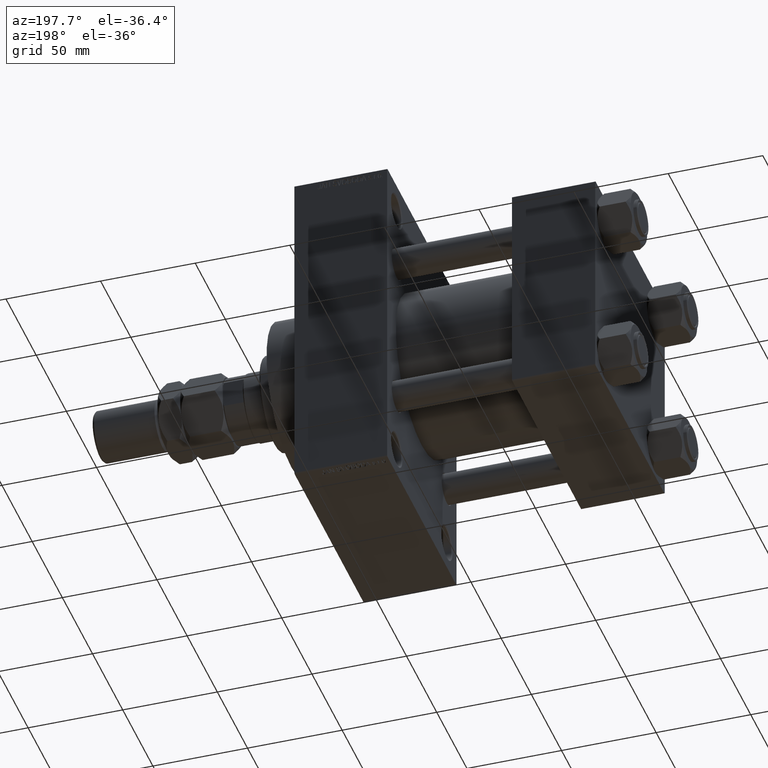
[diagram: clean part render]
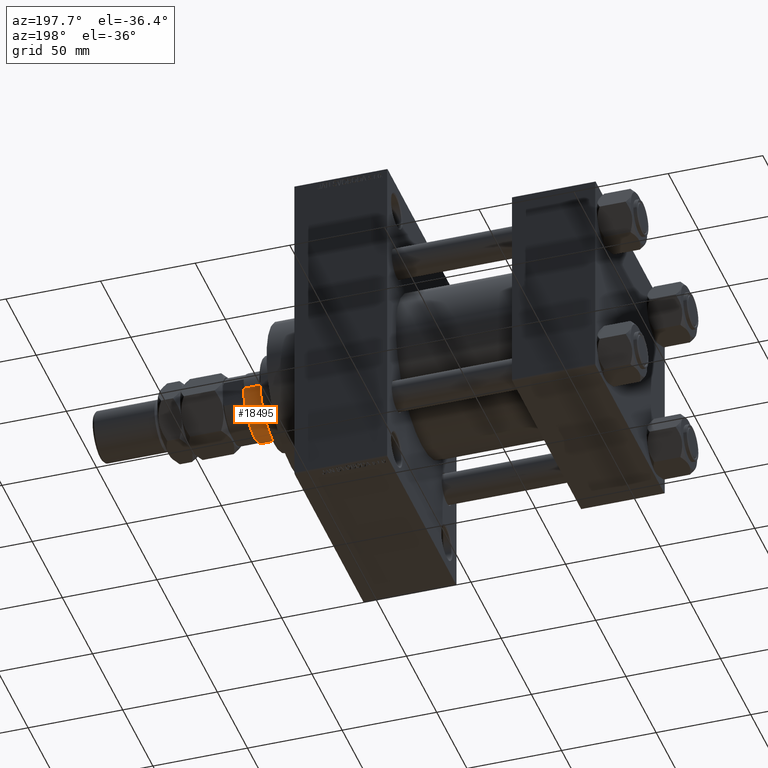
[diagram: same view with one face highlighted and labeled with its STEP entity id]
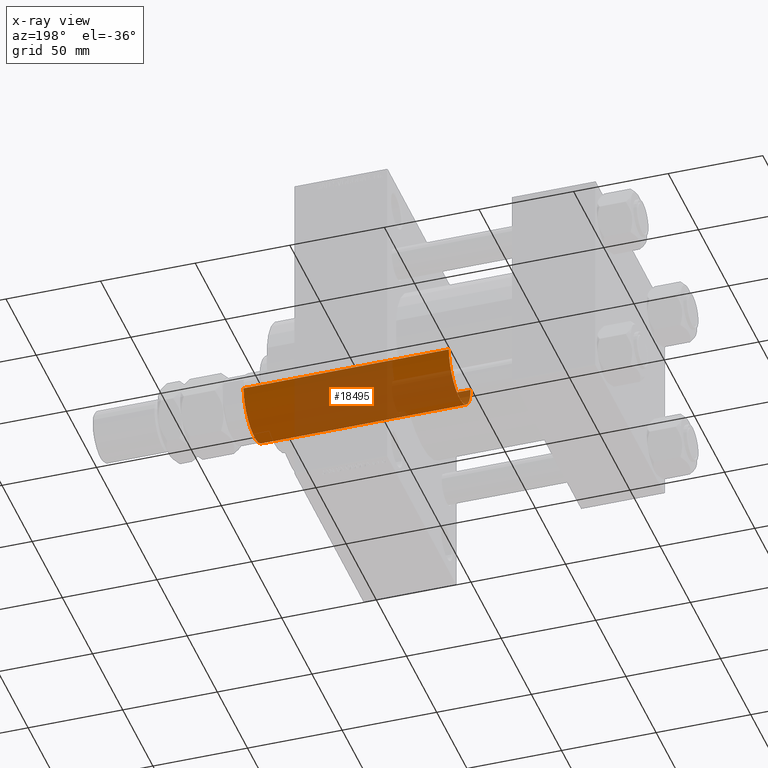
[diagram: x-ray of the same camera — body ghosted, the highlighted face saturated]
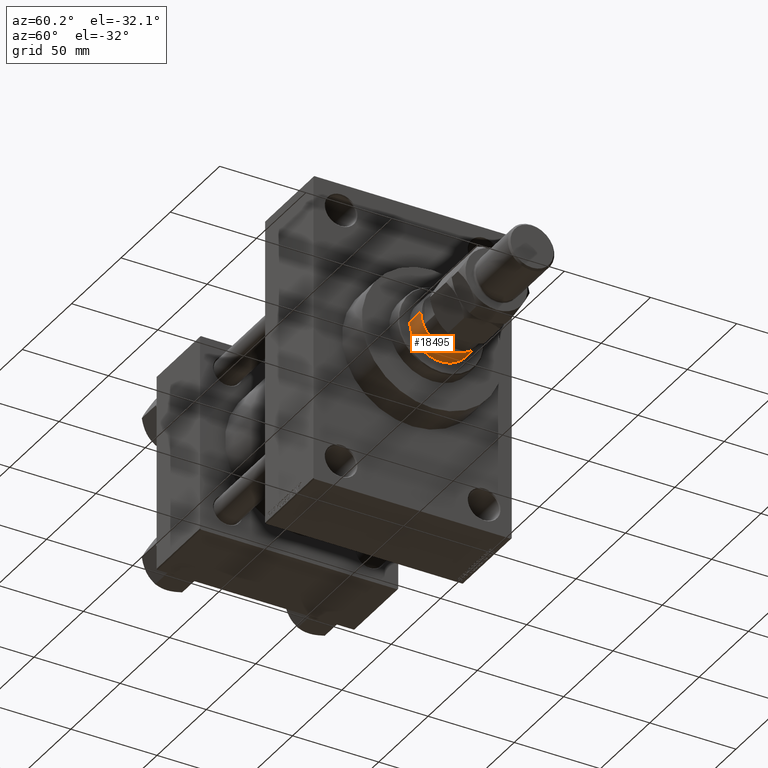
[diagram: same view with one face highlighted and labeled with its STEP entity id]
A machine part, auxiliary view. The second image highlights one B-rep face of the part: STEP entity #18495.
The next image is the same camera in x-ray: the body ghosted, the highlighted face saturated — about 66% of this face is hidden behind the body in this view.
A second angle (auxiliary view) of the same face is appended — the face is thin or edge-on in the first view.
In plain terms, the highlighted cylindrical surface (edge-blend (fillet) strip) has radius 18 mm, axis along (-1, 0, 0).
Its self-contained STEP definition (entity closure, byte-faithful):
#1953 = DIRECTION ( 'NONE',  ( -0.000000000000000000, -0.000000000000000000, -1.000000000000000000 ) ) ;
#2214 = VERTEX_POINT ( 'NONE', #26973 ) ;
#2231 = CARTESIAN_POINT ( 'NONE',  ( -18.00000000000000000, 0.000000000000000000, 155.0000000000000000 ) ) ;
#3072 = DIRECTION ( 'NONE',  ( 1.000000000000000000, 0.000000000000000000, 0.000000000000000000 ) ) ;
#4295 = CARTESIAN_POINT ( 'NONE',  ( -18.00000000000000000, 0.000000000000000000, 46.00000000000000000 ) ) ;
#6195 = EDGE_CURVE ( 'NONE', #48475, #43909, #16702, .T. ) ;
#7075 = EDGE_LOOP ( 'NONE', ( #35087, #36203, #48352, #35304 ) ) ;
#8209 = LINE ( 'NONE', #38637, #21041 ) ;
#8366 = AXIS2_PLACEMENT_3D ( 'NONE', #26009, #22295, #3072 ) ;
#8560 = DIRECTION ( 'NONE',  ( -0.000000000000000000, -0.000000000000000000, -1.000000000000000000 ) ) ;
#9929 = CIRCLE ( 'NONE', #8366, 18.00000000000000000 ) ;
#10206 = DIRECTION ( 'NONE',  ( -0.000000000000000000, -0.000000000000000000, -1.000000000000000000 ) ) ;
#12062 = FACE_OUTER_BOUND ( 'NONE', #7075, .T. ) ;
#12517 = CIRCLE ( 'NONE', #19682, 18.00000000000000000 ) ;
#14211 = EDGE_CURVE ( 'NONE', #2214, #35718, #8209, .T. ) ;
#15571 = CARTESIAN_POINT ( 'NONE',  ( 18.00000000000000000, 2.204364238465235428E-15, 46.00000000000000000 ) ) ;
#16702 = LINE ( 'NONE', #2231, #33378 ) ;
#18495 = ADVANCED_FACE ( 'NONE', ( #12062 ), #43446, .T. ) ;
#19682 = AXIS2_PLACEMENT_3D ( 'NONE', #24992, #40456, #40201 ) ;
#21041 = VECTOR ( 'NONE', #1953, 1000.000000000000000 ) ;
#22295 = DIRECTION ( 'NONE',  ( 0.000000000000000000, 0.000000000000000000, -1.000000000000000000 ) ) ;
#23567 = AXIS2_PLACEMENT_3D ( 'NONE', #27267, #8560, #35485 ) ;
#24620 = EDGE_CURVE ( 'NONE', #35718, #43909, #12517, .T. ) ;
#24992 = CARTESIAN_POINT ( 'NONE',  ( 0.000000000000000000, 0.000000000000000000, 46.00000000000000000 ) ) ;
#26009 = CARTESIAN_POINT ( 'NONE',  ( 0.000000000000000000, 0.000000000000000000, 154.4999999999999716 ) ) ;
#26973 = CARTESIAN_POINT ( 'NONE',  ( 18.00000000000000000, 2.204364238465235428E-15, 154.4999999999999716 ) ) ;
#27267 = CARTESIAN_POINT ( 'NONE',  ( 0.000000000000000000, 0.000000000000000000, 155.0000000000000000 ) ) ;
#33378 = VECTOR ( 'NONE', #10206, 1000.000000000000000 ) ;
#35087 = ORIENTED_EDGE ( 'NONE', *, *, #43761, .T. ) ;
#35304 = ORIENTED_EDGE ( 'NONE', *, *, #6195, .F. ) ;
#35485 = DIRECTION ( 'NONE',  ( -1.000000000000000000, 0.000000000000000000, 0.000000000000000000 ) ) ;
#35718 = VERTEX_POINT ( 'NONE', #15571 ) ;
#36203 = ORIENTED_EDGE ( 'NONE', *, *, #14211, .T. ) ;
#38637 = CARTESIAN_POINT ( 'NONE',  ( 18.00000000000000000, 2.204364238465235428E-15, 155.0000000000000000 ) ) ;
#38758 = CARTESIAN_POINT ( 'NONE',  ( -18.00000000000000000, 0.000000000000000000, 154.4999999999999716 ) ) ;
#40201 = DIRECTION ( 'NONE',  ( 1.000000000000000000, 0.000000000000000000, 0.000000000000000000 ) ) ;
#40456 = DIRECTION ( 'NONE',  ( 0.000000000000000000, 0.000000000000000000, 1.000000000000000000 ) ) ;
#43446 = CYLINDRICAL_SURFACE ( 'NONE', #23567, 18.00000000000000000 ) ;
#43761 = EDGE_CURVE ( 'NONE', #48475, #2214, #9929, .T. ) ;
#43909 = VERTEX_POINT ( 'NONE', #4295 ) ;
#48352 = ORIENTED_EDGE ( 'NONE', *, *, #24620, .T. ) ;
#48475 = VERTEX_POINT ( 'NONE', #38758 ) ;